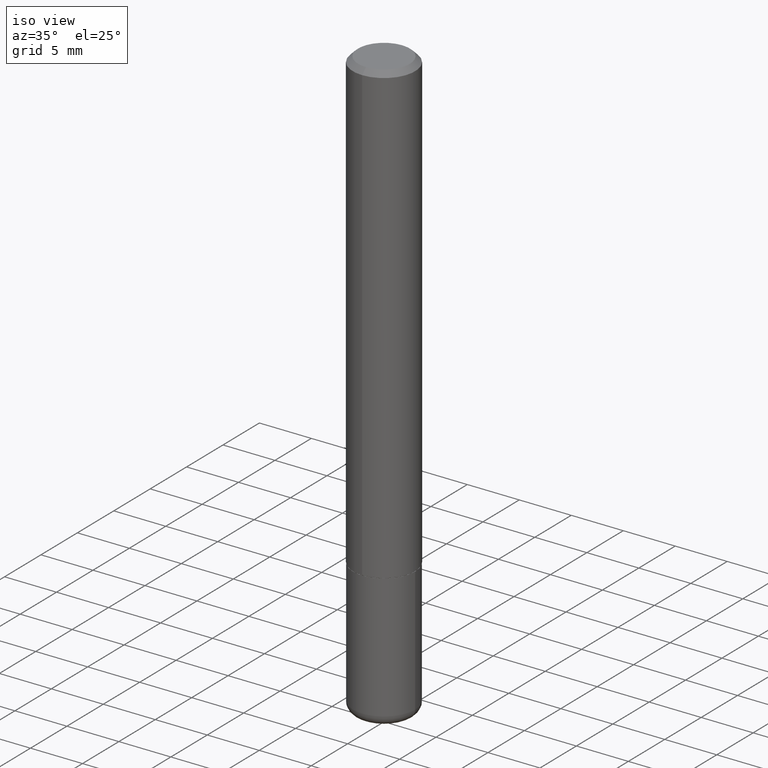
[diagram: clean part render]
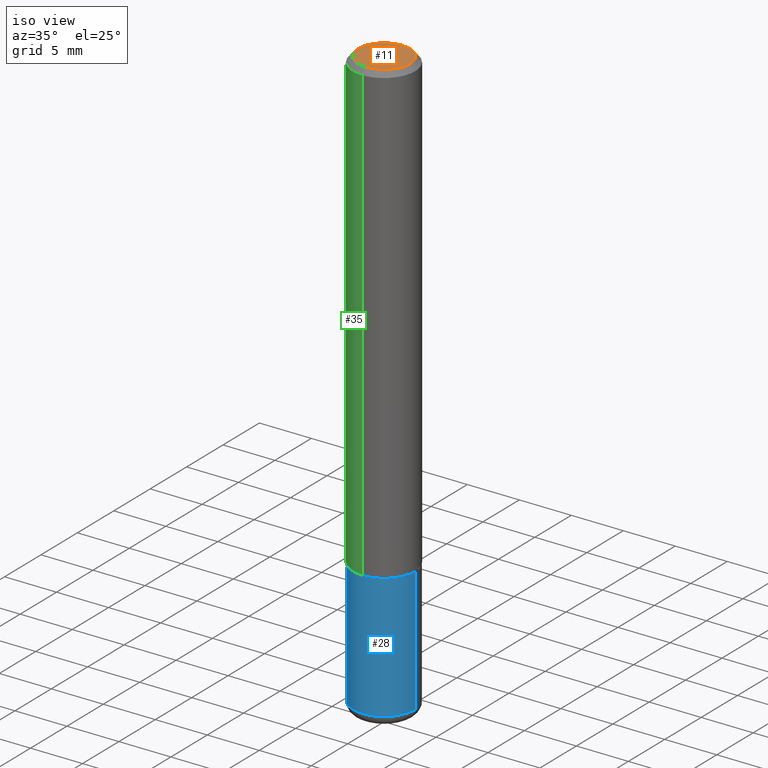
[diagram: same view with three faces highlighted in distinct colors, each labeled with its STEP entity id]
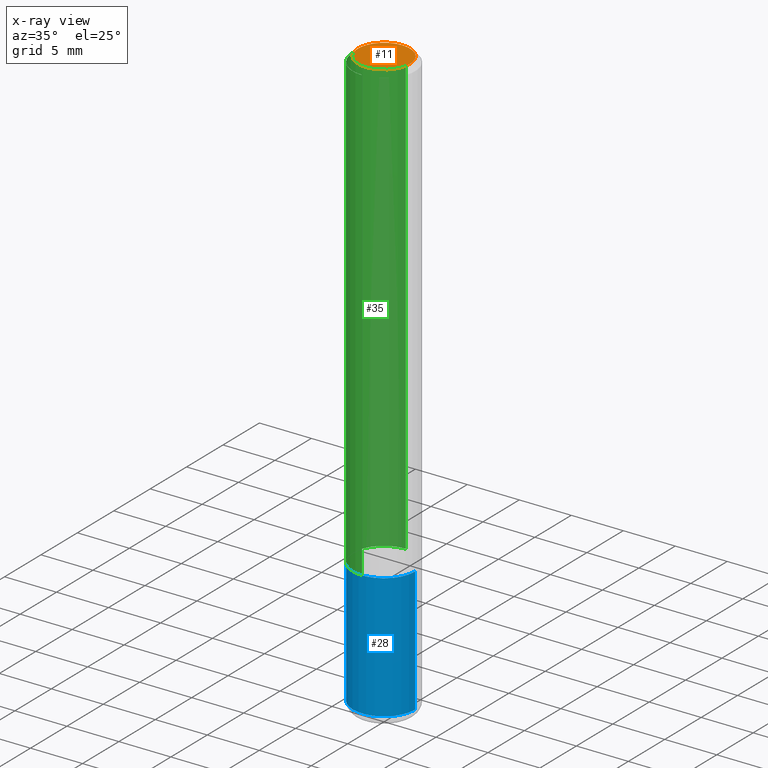
[diagram: x-ray of the same camera — body ghosted, the three highlighted faces saturated]
A machine part, iso view with three faces highlighted in distinct colors.
The next image is the same camera in x-ray (body ghosted, the three faces saturated) — at least one of them is partly hidden behind the body in this view.
Their STEP definitions:

[orange] entity #11 — the highlighted planar face has unit normal (0, -0, -1).
#7 = CIRCLE ( 'NONE', #339, 0.09810000000000038134 ) ;
#11 = ADVANCED_FACE ( 'NONE', ( #38 ), #133, .F. ) ;
#24 = VERTEX_POINT ( 'NONE', #33 ) ;
#33 = CARTESIAN_POINT ( 'NONE',  ( 7.548582654578869366E-16, 0.09810000000000038134, -7.394859809198522899E-16 ) ) ;
#38 = FACE_OUTER_BOUND ( 'NONE', #64, .T. ) ;
#50 = VERTEX_POINT ( 'NONE', #78 ) ;
#64 = EDGE_LOOP ( 'NONE', ( #397, #112 ) ) ;
#66 = CIRCLE ( 'NONE', #302, 0.09810000000000038134 ) ;
#78 = CARTESIAN_POINT ( 'NONE',  ( -7.416198335591035884E-16, -0.09810000000000038134, -5.223485457331552221E-17 ) ) ;
#83 = CARTESIAN_POINT ( 'NONE',  ( 9.649330213878425862E-45, -1.386623435129200920E-30, -3.958604177465838290E-16 ) ) ;
#93 = CARTESIAN_POINT ( 'NONE',  ( 9.649330213878425862E-45, -1.386623435129200920E-30, -3.958604177465838290E-16 ) ) ;
#112 = ORIENTED_EDGE ( 'NONE', *, *, #195, .T. ) ;
#133 = PLANE ( 'NONE',  #196 ) ;
#135 = EDGE_CURVE ( 'NONE', #24, #50, #7, .T. ) ;
#170 = DIRECTION ( 'NONE',  ( 2.437558740731586008E-29, -3.502809002785596045E-15, -1.000000000000000000 ) ) ;
#195 = EDGE_CURVE ( 'NONE', #50, #24, #66, .T. ) ;
#196 = AXIS2_PLACEMENT_3D ( 'NONE', #418, #170, #329 ) ;
#240 = DIRECTION ( 'NONE',  ( -2.437558740731586288E-29, 3.502809002785596045E-15, 1.000000000000000000 ) ) ;
#302 = AXIS2_PLACEMENT_3D ( 'NONE', #93, #404, #409 ) ;
#329 = DIRECTION ( 'NONE',  ( 6.982962677686265922E-15, 1.000000000000000000, -3.502809002785596045E-15 ) ) ;
#339 = AXIS2_PLACEMENT_3D ( 'NONE', #83, #240, #396 ) ;
#396 = DIRECTION ( 'NONE',  ( -6.982962677686265922E-15, -1.000000000000000000, 3.502809002785596045E-15 ) ) ;
#397 = ORIENTED_EDGE ( 'NONE', *, *, #135, .T. ) ;
#404 = DIRECTION ( 'NONE',  ( -2.437558740731586288E-29, 3.502809002785596045E-15, 1.000000000000000000 ) ) ;
#409 = DIRECTION ( 'NONE',  ( -6.982962677686265922E-15, -1.000000000000000000, 3.502809002785596045E-15 ) ) ;
#418 = CARTESIAN_POINT ( 'NONE',  ( 6.850286386810253147E-16, 0.09810000000000038134, -5.415557720465602275E-16 ) ) ;

[blue] entity #28 — the highlighted cylindrical surface (partial cylindrical patch) has radius 2.9997 mm, axis along (-0, 0, 1).
#5 = FACE_OUTER_BOUND ( 'NONE', #258, .T. ) ;
#12 = CARTESIAN_POINT ( 'NONE',  ( -0.1181000000000000105, 8.391509709326783943E-16, -5.809262341591044484E-30 ) ) ;
#15 = AXIS2_PLACEMENT_3D ( 'NONE', #41, #44, #75 ) ;
#27 = ORIENTED_EDGE ( 'NONE', *, *, #159, .T. ) ;
#28 = ADVANCED_FACE ( 'NONE', ( #5 ), #32, .T. ) ;
#32 = CYLINDRICAL_SURFACE ( 'NONE', #34, 0.1181000000000000105 ) ;
#34 = AXIS2_PLACEMENT_3D ( 'NONE', #297, #269, #167 ) ;
#41 = CARTESIAN_POINT ( 'NONE',  ( 4.236285612954512392E-29, -6.048293123277981078E-15, -1.732299999999999951 ) ) ;
#42 = VERTEX_POINT ( 'NONE', #145 ) ;
#44 = DIRECTION ( 'NONE',  ( -2.445468806185136597E-29, 3.491481338843145583E-15, 1.000000000000000000 ) ) ;
#61 = CARTESIAN_POINT ( 'NONE',  ( -0.1180999999999998995, -6.858517936814806506E-15, -2.204700000000000326 ) ) ;
#75 = DIRECTION ( 'NONE',  ( 1.000000000000000000, -6.982962677686262766E-15, 0.000000000000000000 ) ) ;
#84 = EDGE_CURVE ( 'NONE', #319, #42, #199, .T. ) ;
#113 = LINE ( 'NONE', #365, #333 ) ;
#122 = CIRCLE ( 'NONE', #322, 0.1180999999999999966 ) ;
#124 = ORIENTED_EDGE ( 'NONE', *, *, #84, .F. ) ;
#145 = CARTESIAN_POINT ( 'NONE',  ( 0.1181000000000000383, -6.872981015512729341E-15, -1.732299999999999951 ) ) ;
#159 = EDGE_CURVE ( 'NONE', #249, #42, #113, .T. ) ;
#167 = DIRECTION ( 'NONE',  ( 1.000000000000000000, -6.982962677686267499E-15, 4.876176775795936353E-29 ) ) ;
#169 = EDGE_CURVE ( 'NONE', #378, #319, #271, .T. ) ;
#199 = CIRCLE ( 'NONE', #15, 0.1181000000000000383 ) ;
#211 = ORIENTED_EDGE ( 'NONE', *, *, #169, .F. ) ;
#222 = CARTESIAN_POINT ( 'NONE',  ( -0.1181000000000000522, -6.033830044580054299E-15, -1.732299999999999951 ) ) ;
#228 = DIRECTION ( 'NONE',  ( -2.445468806185136597E-29, 3.491481338843145583E-15, 1.000000000000000000 ) ) ;
#230 = DIRECTION ( 'NONE',  ( 1.000000000000000000, -6.982962677686265133E-15, 0.000000000000000000 ) ) ;
#249 = VERTEX_POINT ( 'NONE', #312 ) ;
#250 = VECTOR ( 'NONE', #393, 39.37007874015748143 ) ;
#258 = EDGE_LOOP ( 'NONE', ( #211, #283, #27, #124 ) ) ;
#269 = DIRECTION ( 'NONE',  ( -2.445468806185136597E-29, 3.491481338843145583E-15, 1.000000000000000000 ) ) ;
#271 = LINE ( 'NONE', #12, #250 ) ;
#283 = ORIENTED_EDGE ( 'NONE', *, *, #416, .T. ) ;
#297 = CARTESIAN_POINT ( 'NONE',  ( 0.000000000000000000, 0.000000000000000000, 0.000000000000000000 ) ) ;
#312 = CARTESIAN_POINT ( 'NONE',  ( 0.1180999999999998995, -8.522356799982231388E-15, -2.204700000000000326 ) ) ;
#319 = VERTEX_POINT ( 'NONE', #222 ) ;
#320 = CARTESIAN_POINT ( 'NONE',  ( 5.391525076996371277E-29, -7.697668907747483125E-15, -2.204700000000000326 ) ) ;
#322 = AXIS2_PLACEMENT_3D ( 'NONE', #320, #228, #230 ) ;
#333 = VECTOR ( 'NONE', #334, 39.37007874015748143 ) ;
#334 = DIRECTION ( 'NONE',  ( -2.445468806185136877E-29, 3.491481338843145188E-15, 1.000000000000000000 ) ) ;
#365 = CARTESIAN_POINT ( 'NONE',  ( 0.1181000000000000105, -8.246878922347482626E-16, 5.758764772215001141E-30 ) ) ;
#378 = VERTEX_POINT ( 'NONE', #61 ) ;
#393 = DIRECTION ( 'NONE',  ( -2.445468806185136877E-29, 3.491481338843145188E-15, 1.000000000000000000 ) ) ;
#416 = EDGE_CURVE ( 'NONE', #378, #249, #122, .T. ) ;

[green] entity #35 — the highlighted cylindrical surface (partial cylindrical patch) has radius 2.9997 mm, axis along (-0, 0, 1).
#8 = VECTOR ( 'NONE', #156, 39.37007874015748143 ) ;
#16 = DIRECTION ( 'NONE',  ( -2.437558740731586288E-29, 3.502809002785596045E-15, 1.000000000000000000 ) ) ;
#18 = ORIENTED_EDGE ( 'NONE', *, *, #70, .F. ) ;
#35 = ADVANCED_FACE ( 'NONE', ( #265 ), #103, .T. ) ;
#70 = EDGE_CURVE ( 'NONE', #225, #287, #108, .T. ) ;
#87 = DIRECTION ( 'NONE',  ( -6.982962677686265922E-15, -1.000000000000000000, 3.505890868245044514E-15 ) ) ;
#95 = LINE ( 'NONE', #406, #8 ) ;
#101 = DIRECTION ( 'NONE',  ( -2.437558740731586288E-29, 3.502809002785596045E-15, 1.000000000000000000 ) ) ;
#103 = CYLINDRICAL_SURFACE ( 'NONE', #140, 0.1181000000000001632 ) ;
#108 = CIRCLE ( 'NONE', #382, 0.1181000000000000383 ) ;
#123 = DIRECTION ( 'NONE',  ( -6.982962677686265922E-15, -1.000000000000000000, 4.626330217890357503E-15 ) ) ;
#140 = AXIS2_PLACEMENT_3D ( 'NONE', #229, #234, #292 ) ;
#152 = CARTESIAN_POINT ( 'NONE',  ( 8.391509709327013699E-16, 0.1180999999999942790, -1.731300000000000505 ) ) ;
#156 = DIRECTION ( 'NONE',  ( -2.437558740731586568E-29, 3.502809002785596045E-15, 1.000000000000000000 ) ) ;
#160 = LINE ( 'NONE', #288, #243 ) ;
#185 = ORIENTED_EDGE ( 'NONE', *, *, #379, .T. ) ;
#192 = CARTESIAN_POINT ( 'NONE',  ( 4.220145447828595278E-29, -6.064413226522701602E-15, -1.731299999999999839 ) ) ;
#217 = VERTEX_POINT ( 'NONE', #152 ) ;
#221 = AXIS2_PLACEMENT_3D ( 'NONE', #192, #101, #123 ) ;
#225 = VERTEX_POINT ( 'NONE', #343 ) ;
#229 = CARTESIAN_POINT ( 'NONE',  ( 0.000000000000000000, 0.000000000000000000, 0.000000000000000000 ) ) ;
#234 = DIRECTION ( 'NONE',  ( -2.437558740731586288E-29, 3.502809002785596045E-15, 1.000000000000000000 ) ) ;
#243 = VECTOR ( 'NONE', #286, 39.37007874015748143 ) ;
#246 = CARTESIAN_POINT ( 'NONE',  ( 4.875117481463191354E-31, -7.005618005571218813E-17, -0.02000000000000007674 ) ) ;
#253 = ORIENTED_EDGE ( 'NONE', *, *, #328, .T. ) ;
#254 = EDGE_CURVE ( 'NONE', #217, #225, #160, .T. ) ;
#255 = CARTESIAN_POINT ( 'NONE',  ( -8.102248135368175393E-16, -0.1181000000000001077, -0.01999999999999966388 ) ) ;
#265 = FACE_OUTER_BOUND ( 'NONE', #376, .T. ) ;
#286 = DIRECTION ( 'NONE',  ( -2.437558740731586568E-29, 3.502809002785596045E-15, 1.000000000000000000 ) ) ;
#287 = VERTEX_POINT ( 'NONE', #255 ) ;
#288 = CARTESIAN_POINT ( 'NONE',  ( 8.391509709326793804E-16, 0.1181000000000001632, -4.136817432289794904E-16 ) ) ;
#292 = DIRECTION ( 'NONE',  ( -6.982962677686265922E-15, -1.000000000000000000, 3.502809002785596439E-15 ) ) ;
#321 = VERTEX_POINT ( 'NONE', #377 ) ;
#328 = EDGE_CURVE ( 'NONE', #321, #287, #95, .T. ) ;
#340 = CIRCLE ( 'NONE', #221, 0.1181000000000003158 ) ;
#343 = CARTESIAN_POINT ( 'NONE',  ( 8.246878922347486570E-16, 0.1180999999999999689, -0.02000000000000048961 ) ) ;
#371 = ORIENTED_EDGE ( 'NONE', *, *, #254, .F. ) ;
#376 = EDGE_LOOP ( 'NONE', ( #371, #185, #253, #18 ) ) ;
#377 = CARTESIAN_POINT ( 'NONE',  ( -8.246878922347080307E-16, -0.1181000000000063804, -1.731299999999999395 ) ) ;
#379 = EDGE_CURVE ( 'NONE', #217, #321, #340, .T. ) ;
#382 = AXIS2_PLACEMENT_3D ( 'NONE', #246, #16, #87 ) ;
#406 = CARTESIAN_POINT ( 'NONE',  ( -8.246878922347491501E-16, -0.1181000000000001632, 4.136817432289794904E-16 ) ) ;